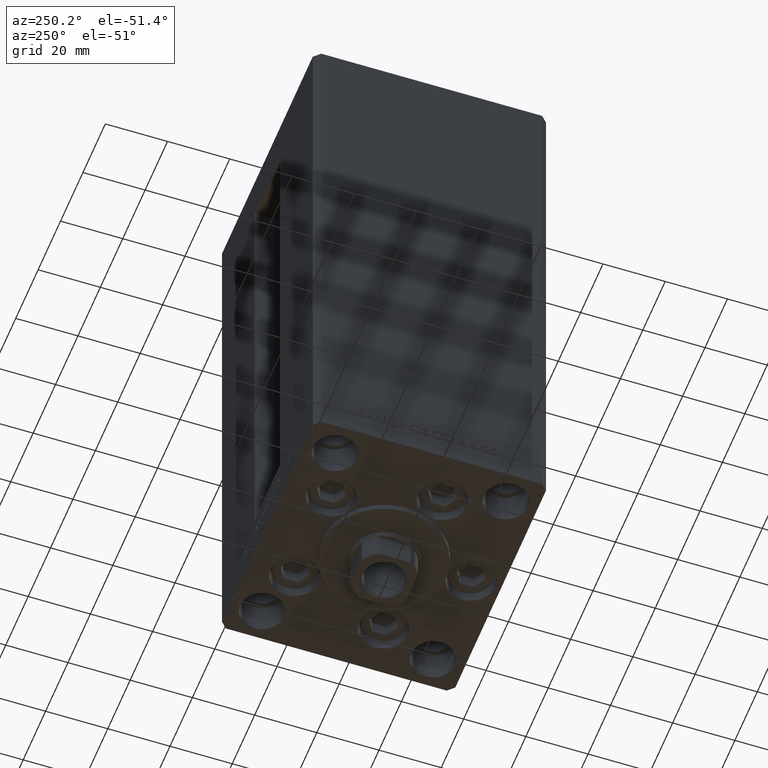
[diagram: clean part render]
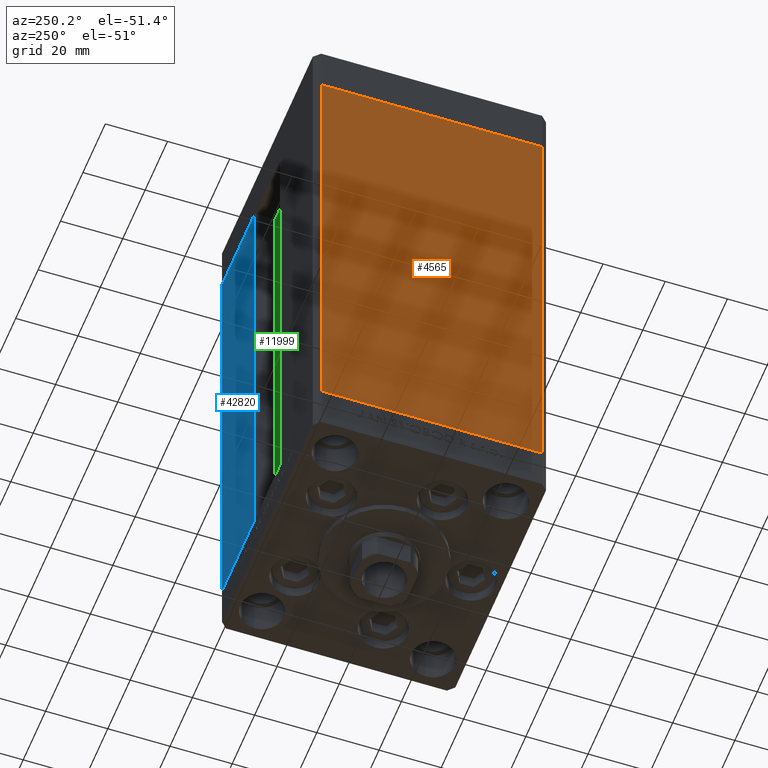
[diagram: same view with three faces highlighted in distinct colors, each labeled with its STEP entity id]
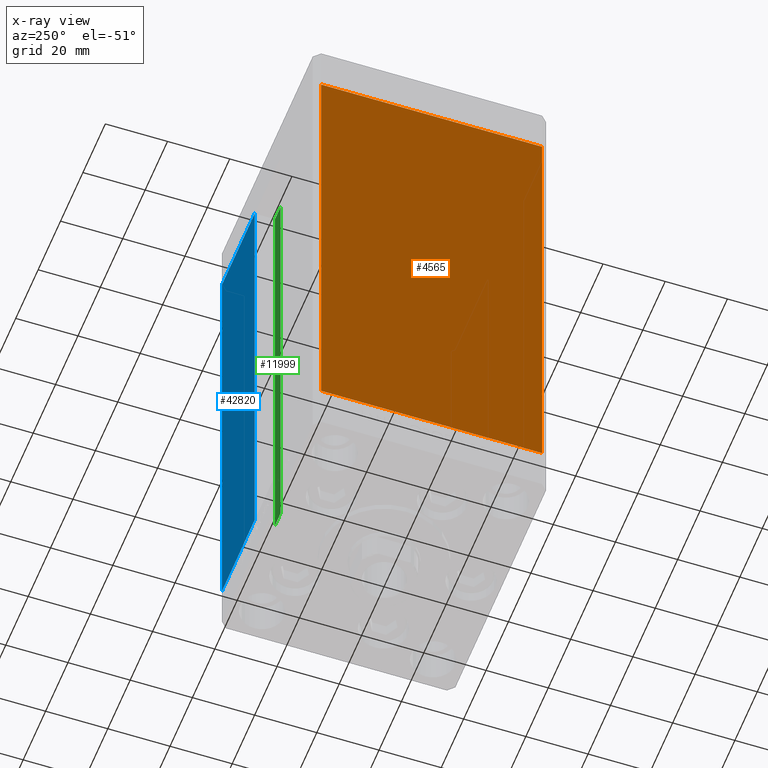
[diagram: x-ray of the same camera — body ghosted, the three highlighted faces saturated]
A machine part, auxiliary view with three faces highlighted in distinct colors.
The next image is the same camera in x-ray (body ghosted, the three faces saturated) — at least one of them is partly hidden behind the body in this view.
Their STEP definitions:

[orange] entity #4565 — the highlighted planar face has unit normal (1, 0, 0).
#616 = VERTEX_POINT ( 'NONE', #39412 ) ;
#1086 = ORIENTED_EDGE ( 'NONE', *, *, #19148, .F. ) ;
#3508 = VERTEX_POINT ( 'NONE', #41591 ) ;
#3587 = CARTESIAN_POINT ( 'NONE',  ( -42.50000000000000711, 35.50000000000001421, 148.5000000000000000 ) ) ;
#4565 = ADVANCED_FACE ( 'NONE', ( #48521 ), #33576, .F. ) ;
#4714 = LINE ( 'NONE', #27375, #21372 ) ;
#5211 = EDGE_CURVE ( 'NONE', #10779, #3508, #4714, .T. ) ;
#5457 = CARTESIAN_POINT ( 'NONE',  ( -42.49999999999998579, -35.50000000000000711, 148.5000000000000000 ) ) ;
#6372 = VERTEX_POINT ( 'NONE', #5457 ) ;
#7558 = DIRECTION ( 'NONE',  ( 2.931927001650941360E-16, -1.000000000000000000, 0.000000000000000000 ) ) ;
#10779 = VERTEX_POINT ( 'NONE', #45174 ) ;
#12252 = VECTOR ( 'NONE', #33197, 1000.000000000000000 ) ;
#13741 = CARTESIAN_POINT ( 'NONE',  ( -42.50000000000000711, 35.50000000000001421, 0.000000000000000000 ) ) ;
#13888 = DIRECTION ( 'NONE',  ( 1.000000000000000000, 2.931927001650941360E-16, -0.000000000000000000 ) ) ;
#18003 = CARTESIAN_POINT ( 'NONE',  ( -42.49999999999998579, -35.50000000000000711, 148.5000000000000000 ) ) ;
#19094 = EDGE_LOOP ( 'NONE', ( #48938, #21843, #1086, #22894 ) ) ;
#19148 = EDGE_CURVE ( 'NONE', #10779, #6372, #37714, .T. ) ;
#21367 = DIRECTION ( 'NONE',  ( -2.931927001650941360E-16, 1.000000000000000000, 0.000000000000000000 ) ) ;
#21372 = VECTOR ( 'NONE', #30631, 1000.000000000000000 ) ;
#21476 = DIRECTION ( 'NONE',  ( 2.931927001650941360E-16, -1.000000000000000000, 0.000000000000000000 ) ) ;
#21843 = ORIENTED_EDGE ( 'NONE', *, *, #22025, .F. ) ;
#22025 = EDGE_CURVE ( 'NONE', #6372, #616, #29713, .T. ) ;
#22527 = VECTOR ( 'NONE', #7558, 1000.000000000000000 ) ;
#22894 = ORIENTED_EDGE ( 'NONE', *, *, #5211, .T. ) ;
#22949 = AXIS2_PLACEMENT_3D ( 'NONE', #44525, #13888, #21367 ) ;
#25701 = LINE ( 'NONE', #13741, #27001 ) ;
#27001 = VECTOR ( 'NONE', #21476, 1000.000000000000000 ) ;
#27375 = CARTESIAN_POINT ( 'NONE',  ( -42.50000000000000711, 35.50000000000001421, 148.5000000000000000 ) ) ;
#29713 = LINE ( 'NONE', #18003, #12252 ) ;
#30631 = DIRECTION ( 'NONE',  ( -0.000000000000000000, -0.000000000000000000, -1.000000000000000000 ) ) ;
#33197 = DIRECTION ( 'NONE',  ( -0.000000000000000000, -0.000000000000000000, -1.000000000000000000 ) ) ;
#33576 = PLANE ( 'NONE',  #22949 ) ;
#37714 = LINE ( 'NONE', #3587, #22527 ) ;
#37817 = EDGE_CURVE ( 'NONE', #3508, #616, #25701, .T. ) ;
#39412 = CARTESIAN_POINT ( 'NONE',  ( -42.49999999999998579, -35.50000000000000711, 0.000000000000000000 ) ) ;
#41591 = CARTESIAN_POINT ( 'NONE',  ( -42.50000000000000711, 35.50000000000001421, 0.000000000000000000 ) ) ;
#44525 = CARTESIAN_POINT ( 'NONE',  ( -42.50000000000000711, 35.50000000000001421, 148.5000000000000000 ) ) ;
#45174 = CARTESIAN_POINT ( 'NONE',  ( -42.50000000000000711, 35.50000000000001421, 148.5000000000000000 ) ) ;
#48521 = FACE_OUTER_BOUND ( 'NONE', #19094, .T. ) ;
#48938 = ORIENTED_EDGE ( 'NONE', *, *, #37817, .T. ) ;

[blue] entity #42820 — the highlighted planar face has unit normal (-0, -1, 0).
#160 = LINE ( 'NONE', #18353, #23766 ) ;
#931 = EDGE_CURVE ( 'NONE', #41222, #26836, #39117, .T. ) ;
#3400 = DIRECTION ( 'NONE',  ( 1.000000000000000000, 0.000000000000000000, 0.000000000000000000 ) ) ;
#4996 = DIRECTION ( 'NONE',  ( -0.000000000000000000, -0.000000000000000000, -1.000000000000000000 ) ) ;
#5332 = LINE ( 'NONE', #39695, #6553 ) ;
#6410 = VECTOR ( 'NONE', #35754, 1000.000000000000000 ) ;
#6553 = VECTOR ( 'NONE', #36446, 1000.000000000000000 ) ;
#10452 = PLANE ( 'NONE',  #16713 ) ;
#13512 = ORIENTED_EDGE ( 'NONE', *, *, #48439, .T. ) ;
#16683 = CARTESIAN_POINT ( 'NONE',  ( 40.50000000000000000, 37.50000000000000711, 148.5000000000000000 ) ) ;
#16713 = AXIS2_PLACEMENT_3D ( 'NONE', #33372, #34104, #22423 ) ;
#18181 = FACE_OUTER_BOUND ( 'NONE', #32700, .T. ) ;
#18353 = CARTESIAN_POINT ( 'NONE',  ( -11.25000000000000000, 37.50000000000000000, 148.5000000000000000 ) ) ;
#21529 = VERTEX_POINT ( 'NONE', #28765 ) ;
#22423 = DIRECTION ( 'NONE',  ( 1.000000000000000000, -2.372271420139223331E-16, 0.000000000000000000 ) ) ;
#23493 = CARTESIAN_POINT ( 'NONE',  ( 40.50000000000000000, 37.50000000000000711, 148.5000000000000000 ) ) ;
#23766 = VECTOR ( 'NONE', #3400, 1000.000000000000000 ) ;
#23796 = CARTESIAN_POINT ( 'NONE',  ( 11.25000000000000000, 37.50000000000000000, 0.000000000000000000 ) ) ;
#25462 = ORIENTED_EDGE ( 'NONE', *, *, #39779, .T. ) ;
#26836 = VERTEX_POINT ( 'NONE', #33299 ) ;
#28029 = LINE ( 'NONE', #39737, #6410 ) ;
#28765 = CARTESIAN_POINT ( 'NONE',  ( 11.24999999999999289, 37.50000000000000000, 148.5000000000000000 ) ) ;
#32700 = EDGE_LOOP ( 'NONE', ( #45789, #13512, #25462, #34586 ) ) ;
#33299 = CARTESIAN_POINT ( 'NONE',  ( 40.50000000000000000, 37.50000000000000711, 0.000000000000000000 ) ) ;
#33372 = CARTESIAN_POINT ( 'NONE',  ( -11.25000000000000000, 37.50000000000000000, 148.5000000000000000 ) ) ;
#34104 = DIRECTION ( 'NONE',  ( -2.372271420139223331E-16, -1.000000000000000000, 0.000000000000000000 ) ) ;
#34586 = ORIENTED_EDGE ( 'NONE', *, *, #931, .T. ) ;
#35754 = DIRECTION ( 'NONE',  ( -1.000000000000000000, 2.372271420139223331E-16, 0.000000000000000000 ) ) ;
#36359 = VECTOR ( 'NONE', #4996, 1000.000000000000000 ) ;
#36446 = DIRECTION ( 'NONE',  ( -0.000000000000000000, -0.000000000000000000, 1.000000000000000000 ) ) ;
#39117 = LINE ( 'NONE', #16683, #36359 ) ;
#39695 = CARTESIAN_POINT ( 'NONE',  ( 11.25000000000000000, 37.50000000000000000, 0.000000000000000000 ) ) ;
#39737 = CARTESIAN_POINT ( 'NONE',  ( -11.25000000000000000, 37.50000000000000000, 0.000000000000000000 ) ) ;
#39779 = EDGE_CURVE ( 'NONE', #21529, #41222, #160, .T. ) ;
#40971 = VERTEX_POINT ( 'NONE', #23796 ) ;
#41222 = VERTEX_POINT ( 'NONE', #23493 ) ;
#42820 = ADVANCED_FACE ( 'NONE', ( #18181 ), #10452, .F. ) ;
#44207 = EDGE_CURVE ( 'NONE', #26836, #40971, #28029, .T. ) ;
#45789 = ORIENTED_EDGE ( 'NONE', *, *, #44207, .T. ) ;
#48439 = EDGE_CURVE ( 'NONE', #40971, #21529, #5332, .T. ) ;

[green] entity #11999 — the highlighted planar face has unit normal (0, -1, 0).
#502 = ORIENTED_EDGE ( 'NONE', *, *, #35722, .T. ) ;
#730 = PLANE ( 'NONE',  #33405 ) ;
#1840 = VECTOR ( 'NONE', #35082, 1000.000000000000000 ) ;
#1854 = DIRECTION ( 'NONE',  ( -1.000000000000000000, 0.000000000000000000, 0.000000000000000000 ) ) ;
#4216 = DIRECTION ( 'NONE',  ( 0.000000000000000000, -0.000000000000000000, -1.000000000000000000 ) ) ;
#8300 = VERTEX_POINT ( 'NONE', #48078 ) ;
#8645 = LINE ( 'NONE', #39518, #44418 ) ;
#9308 = LINE ( 'NONE', #17275, #21701 ) ;
#11679 = CARTESIAN_POINT ( 'NONE',  ( 6.183333333333999704, 30.99999999999999289, 0.000000000000000000 ) ) ;
#11999 = ADVANCED_FACE ( 'NONE', ( #27125 ), #730, .F. ) ;
#15900 = LINE ( 'NONE', #34588, #1840 ) ;
#15911 = DIRECTION ( 'NONE',  ( 0.000000000000000000, -1.000000000000000000, 0.000000000000000000 ) ) ;
#17275 = CARTESIAN_POINT ( 'NONE',  ( 0.000000000000000000, 30.99999999999999289, 148.5000000000000000 ) ) ;
#19046 = EDGE_CURVE ( 'NONE', #8300, #41209, #9308, .T. ) ;
#19172 = CARTESIAN_POINT ( 'NONE',  ( 6.183333333333999704, 30.99999999999999289, 0.000000000000000000 ) ) ;
#19174 = ORIENTED_EDGE ( 'NONE', *, *, #20075, .F. ) ;
#19178 = DIRECTION ( 'NONE',  ( 1.000000000000000000, 0.000000000000000000, 0.000000000000000000 ) ) ;
#20075 = EDGE_CURVE ( 'NONE', #21185, #8300, #15900, .T. ) ;
#20361 = DIRECTION ( 'NONE',  ( -0.000000000000000000, -0.000000000000000000, 1.000000000000000000 ) ) ;
#21185 = VERTEX_POINT ( 'NONE', #30923 ) ;
#21701 = VECTOR ( 'NONE', #1854, 1000.000000000000000 ) ;
#22844 = VECTOR ( 'NONE', #19178, 1000.000000000000000 ) ;
#23407 = LINE ( 'NONE', #11679, #22844 ) ;
#24967 = VERTEX_POINT ( 'NONE', #28050 ) ;
#27125 = FACE_OUTER_BOUND ( 'NONE', #30774, .T. ) ;
#28050 = CARTESIAN_POINT ( 'NONE',  ( 6.183333333333999704, 30.99999999999999289, 0.000000000000000000 ) ) ;
#28168 = ORIENTED_EDGE ( 'NONE', *, *, #19046, .F. ) ;
#29726 = EDGE_CURVE ( 'NONE', #24967, #21185, #23407, .T. ) ;
#30774 = EDGE_LOOP ( 'NONE', ( #19174, #49074, #502, #28168 ) ) ;
#30923 = CARTESIAN_POINT ( 'NONE',  ( 11.25000000000000000, 30.99999999999999289, 0.000000000000000000 ) ) ;
#33405 = AXIS2_PLACEMENT_3D ( 'NONE', #19172, #15911, #4216 ) ;
#34588 = CARTESIAN_POINT ( 'NONE',  ( 11.25000000000000000, 30.99999999999999289, 0.000000000000000000 ) ) ;
#35082 = DIRECTION ( 'NONE',  ( -0.000000000000000000, -0.000000000000000000, 1.000000000000000000 ) ) ;
#35722 = EDGE_CURVE ( 'NONE', #24967, #41209, #8645, .T. ) ;
#39518 = CARTESIAN_POINT ( 'NONE',  ( 6.183333333333999704, 30.99999999999999289, 0.000000000000000000 ) ) ;
#41209 = VERTEX_POINT ( 'NONE', #46884 ) ;
#44418 = VECTOR ( 'NONE', #20361, 1000.000000000000000 ) ;
#46884 = CARTESIAN_POINT ( 'NONE',  ( 6.183333333333999704, 30.99999999999999289, 148.5000000000000000 ) ) ;
#48078 = CARTESIAN_POINT ( 'NONE',  ( 11.25000000000000000, 30.99999999999999289, 148.5000000000000000 ) ) ;
#49074 = ORIENTED_EDGE ( 'NONE', *, *, #29726, .F. ) ;